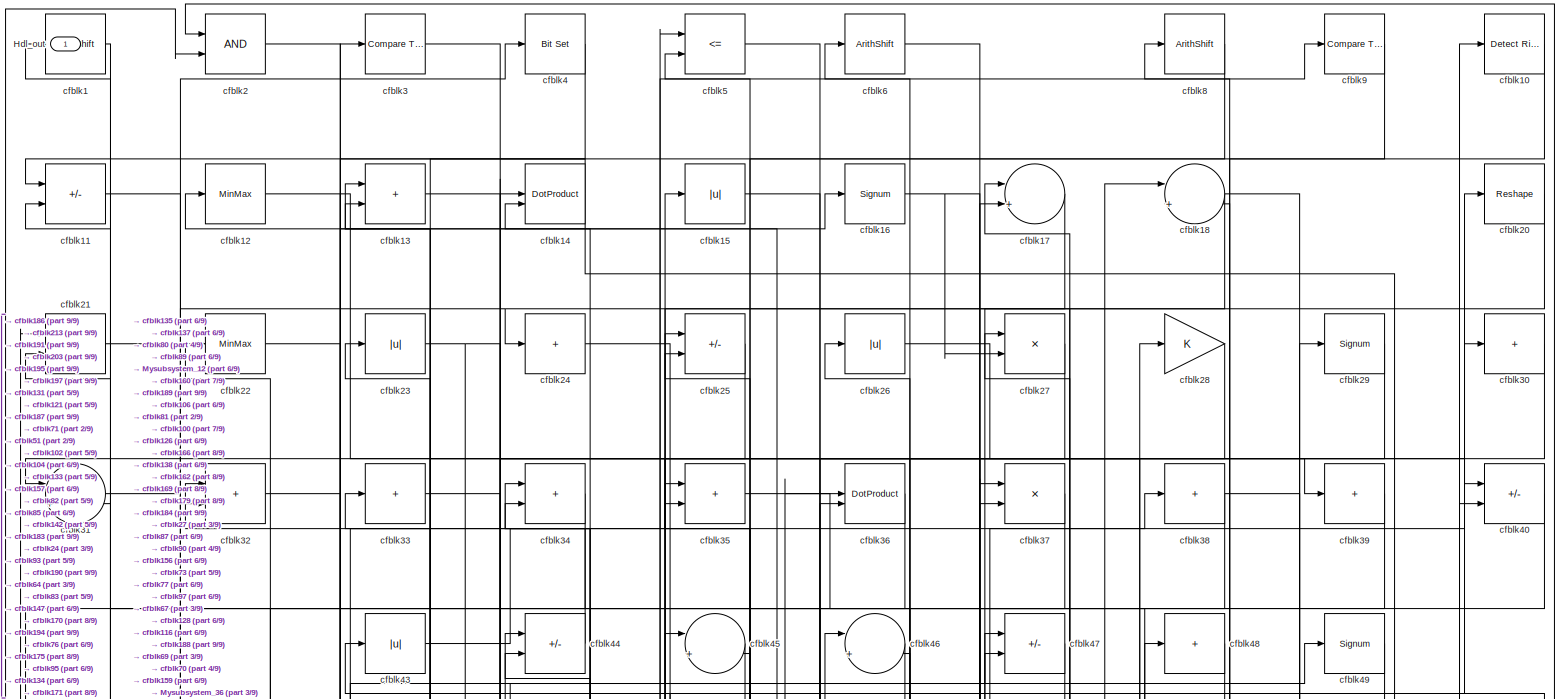
[diagram: root canvas - part 1/9, full width, top band]
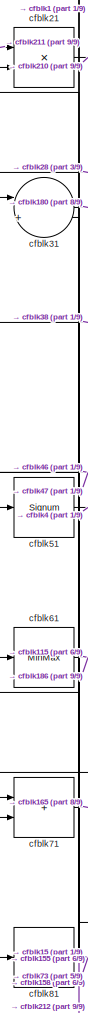
[diagram: root canvas - part 2/9, top left region]
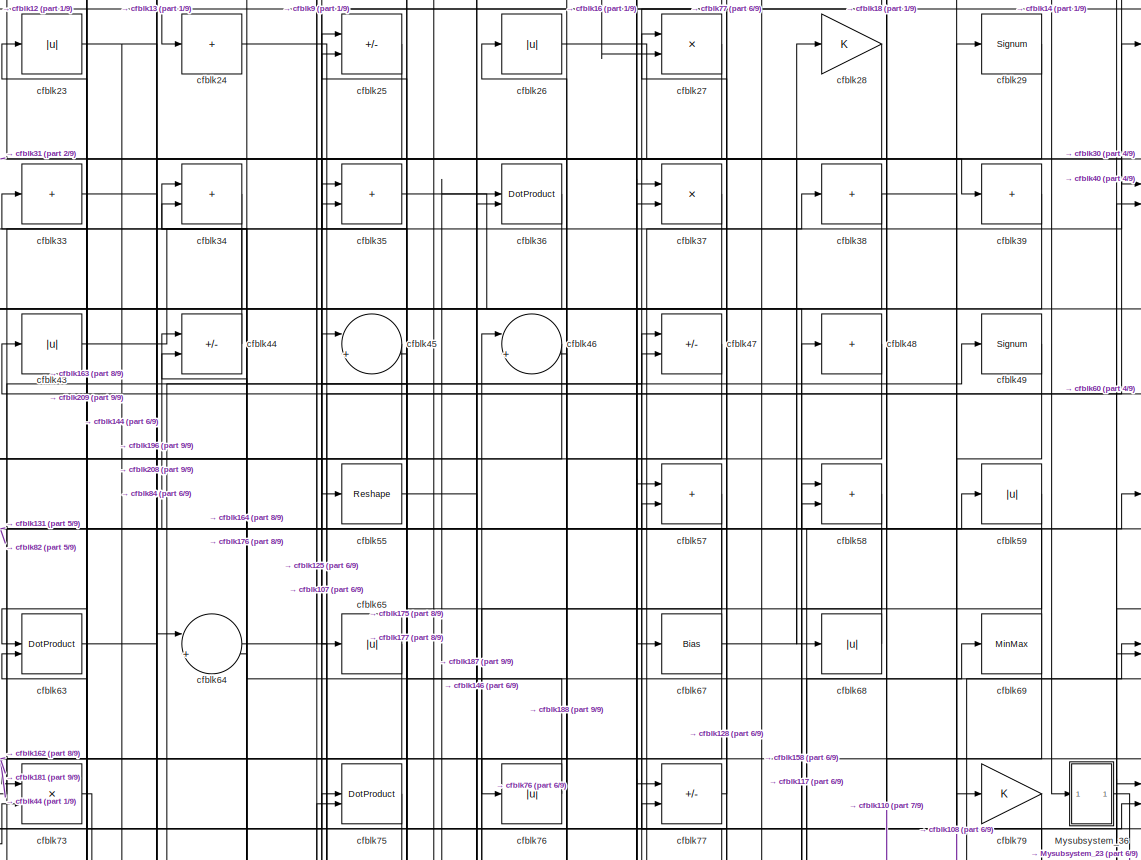
[diagram: root canvas - part 3/9, top center region]
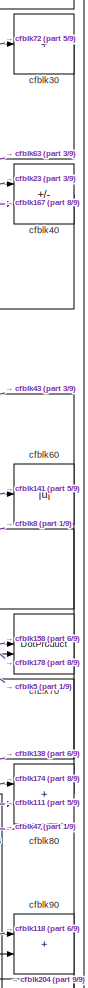
[diagram: root canvas - part 4/9, top right region]
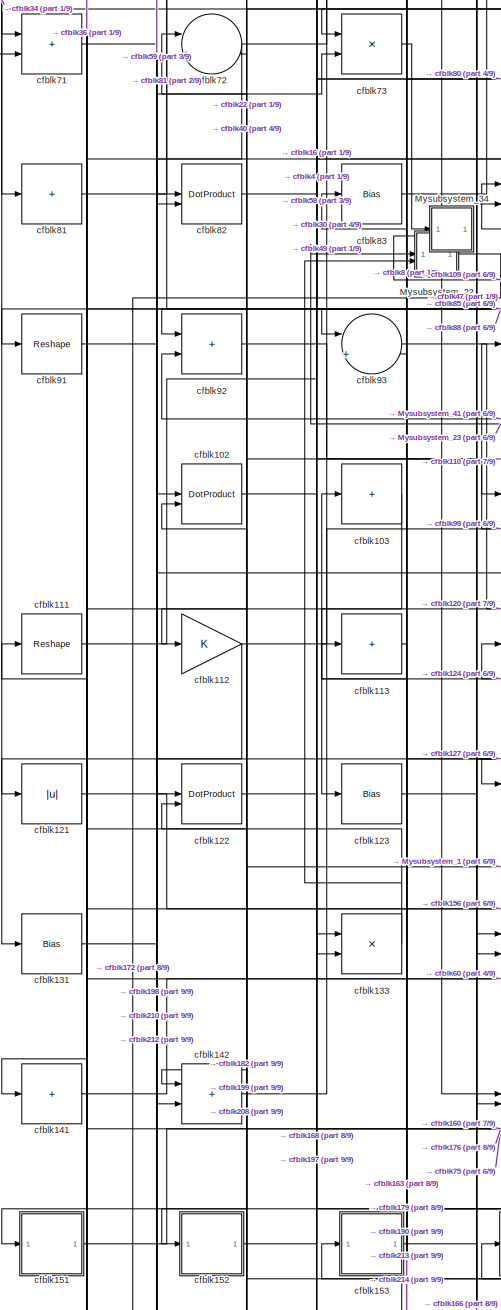
[diagram: root canvas - part 5/9, middle left region]
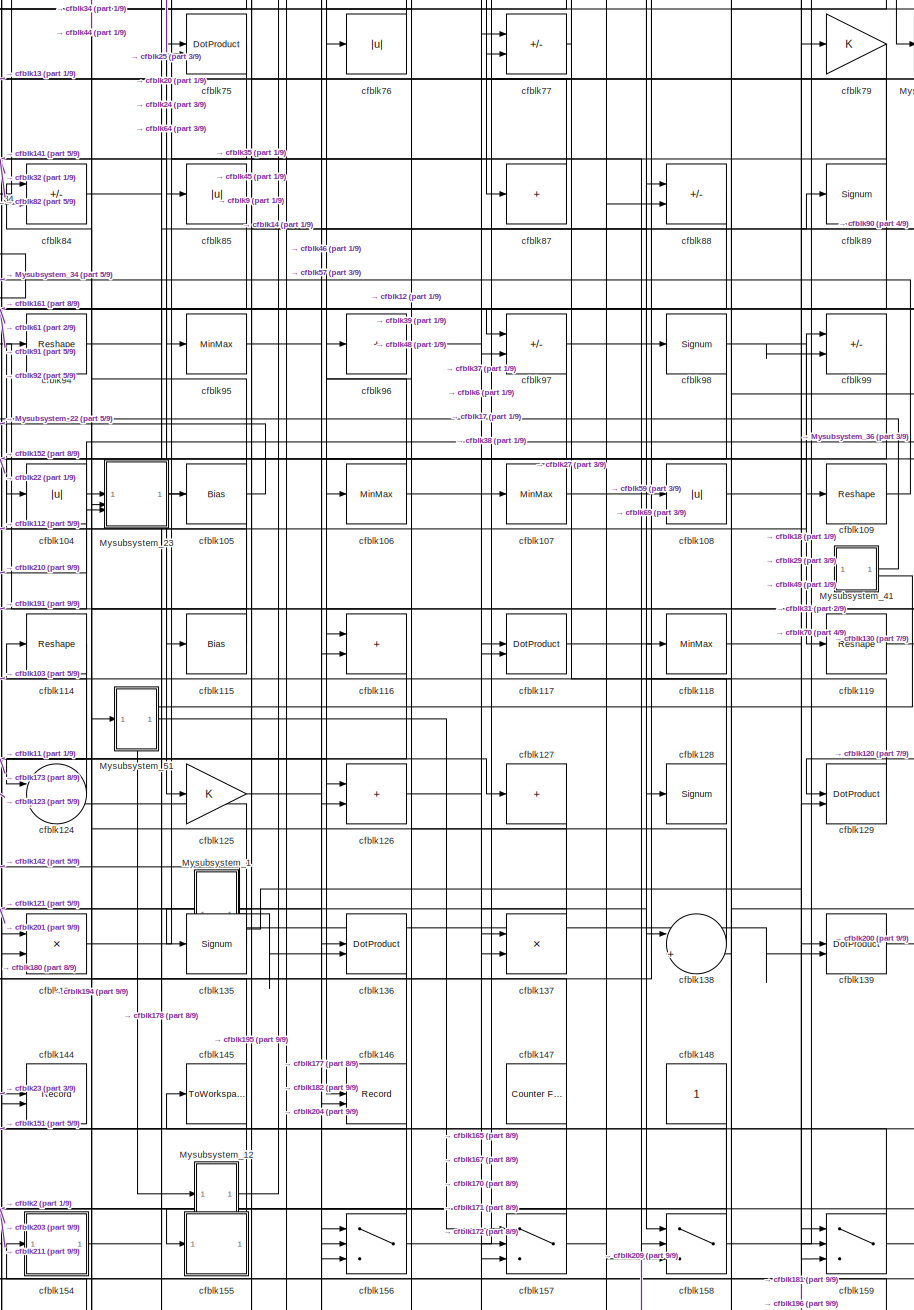
[diagram: root canvas - part 6/9, central region]
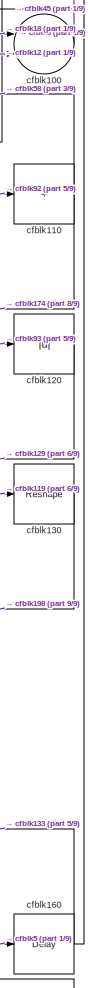
[diagram: root canvas - part 7/9, middle right region]
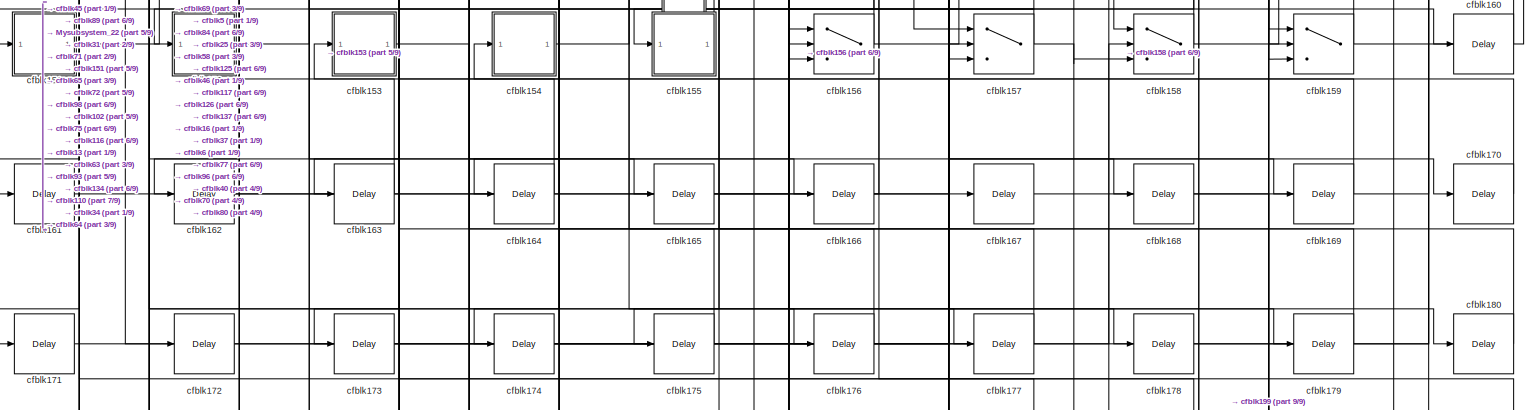
[diagram: root canvas - part 8/9, full width, bottom band]
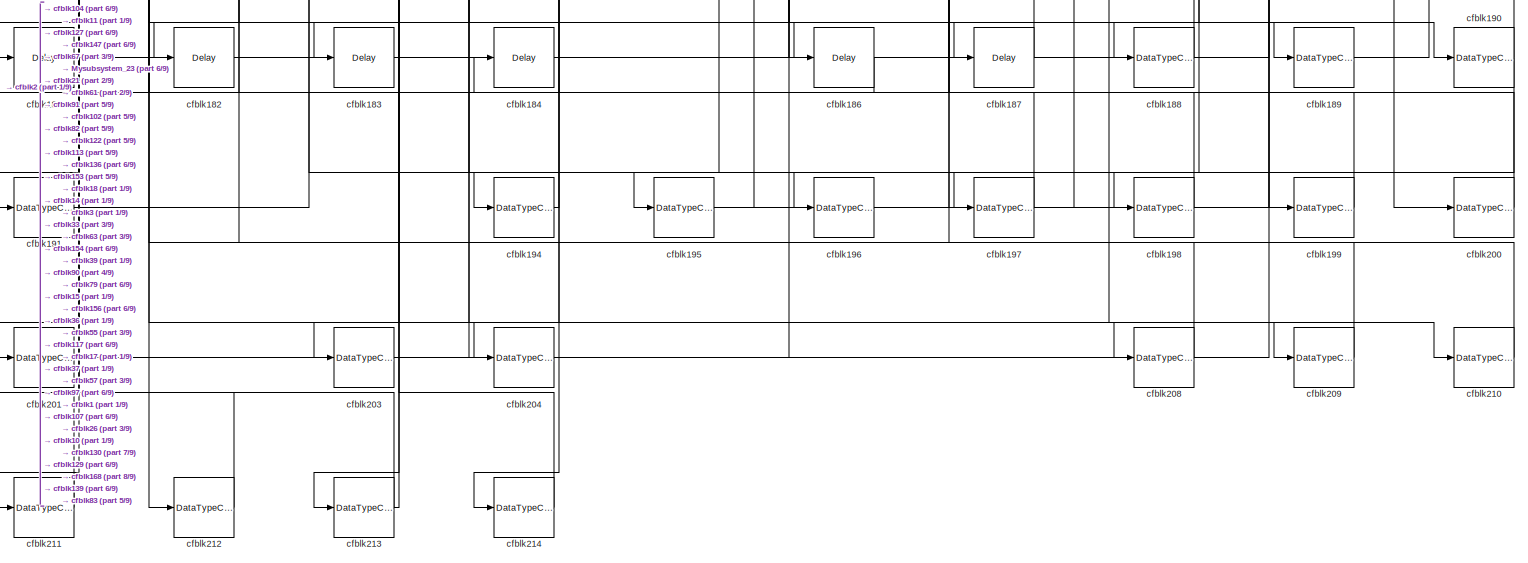
[diagram: root canvas - part 9/9, full width, bottom band]
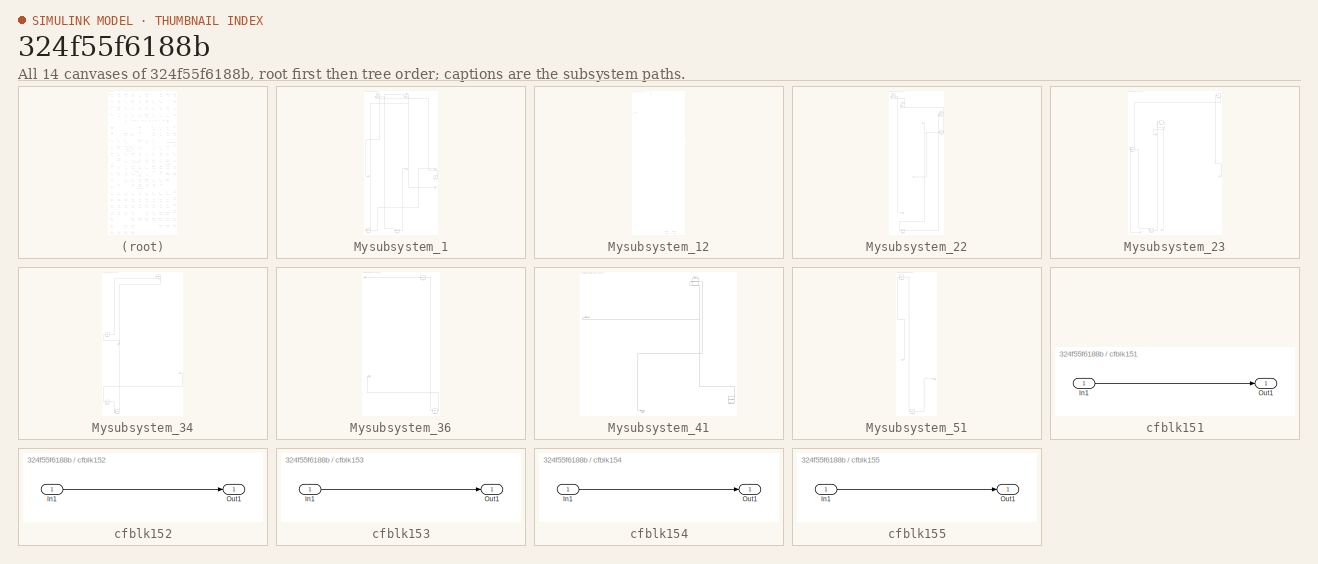
[diagram: thumbnail index - all 14 canvases of the model, root first then tree order]
MODEL slx_324f55f6188b
KIND model
CONFIG AbsTol = auto
CONFIG EnableMultiTasking = off
CONFIG FixedStep = auto
CONFIG MaxStep = auto
CONFIG MinStep = auto
CONFIG RelTol = 1e-3
CONFIG SampleTimeConstraint = Unconstrained
CONFIG SolverName = VariableStepAuto
CONFIG StartTime = 0.0
CONFIG StopTime = 10.0
BLOCK [Outport] Hdl_out
  OutDataTypeStr = uint8
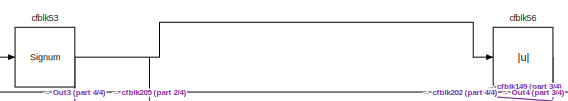
[diagram: Mysubsystem_1 - part 1/4, top center region]
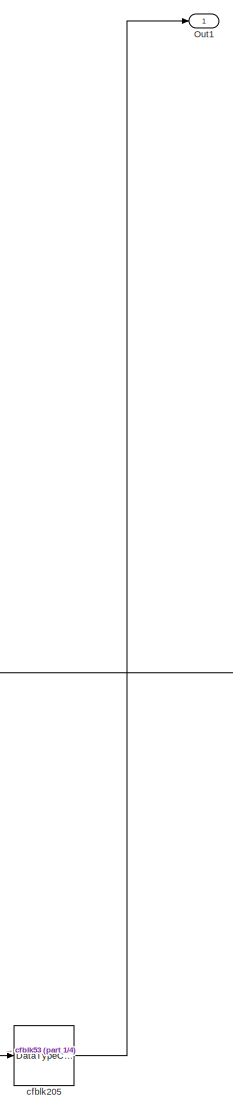
[diagram: Mysubsystem_1 - part 2/4, bottom center region]
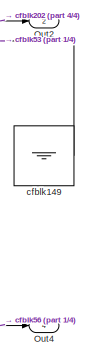
[diagram: Mysubsystem_1 - part 3/4, middle right region]
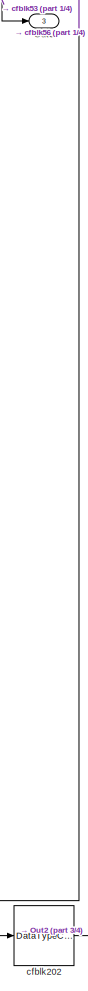
[diagram: Mysubsystem_1 - part 4/4, bottom left region]
BLOCK [SubSystem] Mysubsystem_1
  RTWFcnName = Mysubsystem_1
  RTWFcnNameOpts = User specified
  RTWFileNameOpts = Use function name
  RTWSystemCode = Reusable function
  TreatAsAtomicUnit = on
BLOCK [Outport] Mysubsystem_1/Out1
BLOCK [Outport] Mysubsystem_1/Out2
  Port = 2
BLOCK [Outport] Mysubsystem_1/Out3
  Port = 3
BLOCK [Outport] Mysubsystem_1/Out4
  Port = 4
BLOCK [Ground] Mysubsystem_1/cfblk149
BLOCK [DataTypeConversion] Mysubsystem_1/cfblk202
  OutDataTypeStr = uint8
  RndMeth = Floor
  SaturateOnIntegerOverflow = off
BLOCK [DataTypeConversion] Mysubsystem_1/cfblk205
  OutDataTypeStr = uint8
  RndMeth = Floor
  SaturateOnIntegerOverflow = off
BLOCK [Signum] Mysubsystem_1/cfblk53
BLOCK [Abs] Mysubsystem_1/cfblk56
  SaturateOnIntegerOverflow = off
BLOCK [SubSystem] Mysubsystem_12
  RTWFcnName = Mysubsystem_12
  RTWFcnNameOpts = User specified
  RTWFileNameOpts = Use function name
  RTWSystemCode = Reusable function
  TreatAsAtomicUnit = on
BLOCK [Inport] Mysubsystem_12/In1
BLOCK [Outport] Mysubsystem_12/Out1
BLOCK [DataTypeConversion] Mysubsystem_12/cfblk206
  OutDataTypeStr = uint8
  RndMeth = Floor
  SaturateOnIntegerOverflow = off
BLOCK [DataTypeConversion] Mysubsystem_12/cfblk207
  OutDataTypeStr = uint8
  RndMeth = Floor
  SaturateOnIntegerOverflow = off
BLOCK [Sum] Mysubsystem_12/cfblk42
  IconShape = rectangular
  Inputs = +
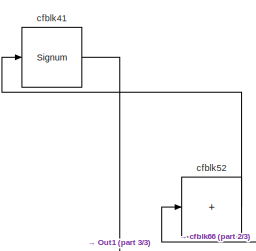
[diagram: Mysubsystem_22 - part 1/3, top left region]
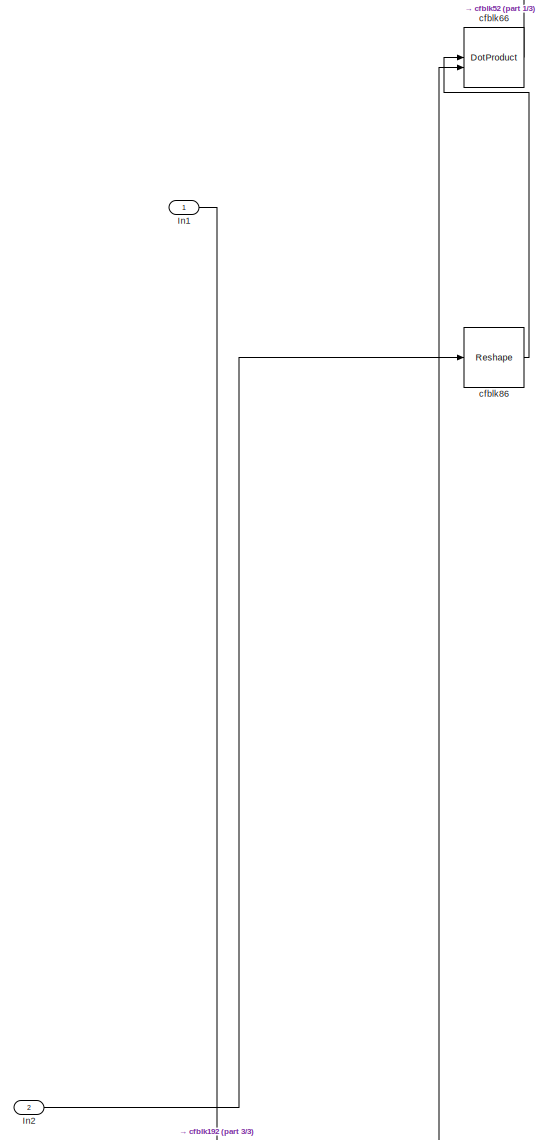
[diagram: Mysubsystem_22 - part 2/3, middle right region]
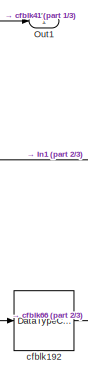
[diagram: Mysubsystem_22 - part 3/3, bottom left region]
BLOCK [SubSystem] Mysubsystem_22
  RTWFcnName = Mysubsystem_22
  RTWFcnNameOpts = User specified
  RTWFileNameOpts = Use function name
  RTWSystemCode = Reusable function
  TreatAsAtomicUnit = on
BLOCK [Inport] Mysubsystem_22/In1
BLOCK [Inport] Mysubsystem_22/In2
  Port = 2
BLOCK [Outport] Mysubsystem_22/Out1
BLOCK [DataTypeConversion] Mysubsystem_22/cfblk192
  OutDataTypeStr = uint8
  RndMeth = Floor
  SaturateOnIntegerOverflow = off
BLOCK [Signum] Mysubsystem_22/cfblk41
BLOCK [Sum] Mysubsystem_22/cfblk52
  IconShape = rectangular
  Inputs = +
BLOCK [DotProduct] Mysubsystem_22/cfblk66
  OutDataTypeStr = Inherit: Inherit via internal rule
BLOCK [Reshape] Mysubsystem_22/cfblk86
BLOCK [SubSystem] Mysubsystem_23
  RTWFcnName = Mysubsystem_23
  RTWFcnNameOpts = User specified
  RTWFileNameOpts = Use function name
  RTWSystemCode = Reusable function
  TreatAsAtomicUnit = on
BLOCK [Inport] Mysubsystem_23/In1
BLOCK [Inport] Mysubsystem_23/In2
  Port = 2
BLOCK [Inport] Mysubsystem_23/In3
  Port = 3
BLOCK [Outport] Mysubsystem_23/Out1
BLOCK [DotProduct] Mysubsystem_23/cfblk101
  OutDataTypeStr = Inherit: Inherit via internal rule
BLOCK [DataTypeConversion] Mysubsystem_23/cfblk193
  OutDataTypeStr = uint8
  RndMeth = Floor
  SaturateOnIntegerOverflow = off
BLOCK [Abs] Mysubsystem_23/cfblk50
  SaturateOnIntegerOverflow = off
BLOCK [Product] Mysubsystem_23/cfblk74
  Inputs = */
  RndMeth = Zero
  SaturateOnIntegerOverflow = on
BLOCK [SubSystem] Mysubsystem_34
  RTWFcnName = Mysubsystem_34
  RTWFcnNameOpts = User specified
  RTWFileNameOpts = Use function name
  RTWSystemCode = Reusable function
  TreatAsAtomicUnit = on
BLOCK [Inport] Mysubsystem_34/In1
BLOCK [Inport] Mysubsystem_34/In2
  Port = 2
BLOCK [Signum] Mysubsystem_34/cfblk132
BLOCK [Record] Mysubsystem_34/cfblk143
  CompatibilityTag = XY
  FileSettingsInternal = {"entries":[{"content":{"excelSettings":{"content":{},"type":"Streamout.ExcelSettings"}},"type":"Streamout.FileSettingStorage","uuid":""}],"packageUris":["http:\/\/schema.mathworks.com\/mf0\/streamout_blocks\/R2020a"],"version":"1.0"}  <repeated x3 — deduplicated; at blocks: cfblk143, cfblk144, cfblk146>
  Layout = [1 1]
  SignalsInternal = {"entries":[{"content":{},"type":"RecordBlkView.InputSignals","uuid":""}],"packageUris":["http:\/\/schema.mathworks.com\/mf0\/streamout_blocks\/R2020a"],"version":"1.0"}
  VisualizationBindings = {"xyplotplugin":{"info":[{"series":[],"subplotID":1}]}}
  st = -1
BLOCK [Bias] Mysubsystem_34/cfblk62
  Bias = 0.0
  SaturateOnIntegerOverflow = off
BLOCK [Reference] Mysubsystem_34/cfblk7  REF=hdlsllib/Logic and Bit
Operations/Bit Slice
  SourceBlock = hdlsllib/Logic and Bit\nOperations/Bit Slice
  SourceType = Bit Slice
BLOCK [SubSystem] Mysubsystem_36
  RTWFcnName = Mysubsystem_36
  RTWFcnNameOpts = User specified
  RTWFileNameOpts = Use function name
  RTWSystemCode = Reusable function
  TreatAsAtomicUnit = on
BLOCK [Inport] Mysubsystem_36/In1
BLOCK [Outport] Mysubsystem_36/Out1
BLOCK [Bias] Mysubsystem_36/cfblk140
  Bias = 0.0
  SaturateOnIntegerOverflow = off
BLOCK [Reshape] Mysubsystem_36/cfblk19
BLOCK [SubSystem] Mysubsystem_41
  RTWFcnName = Mysubsystem_41
  RTWFcnNameOpts = User specified
  RTWFileNameOpts = Use function name
  RTWSystemCode = Reusable function
  TreatAsAtomicUnit = on
BLOCK [Outport] Mysubsystem_41/Out2
  Port = 2
BLOCK [Reference] Mysubsystem_41/cfblk150  REF=hdlsllib/Sources/Counter
Free-Running
  SourceBlock = hdlsllib/Sources/Counter\nFree-Running
  SourceType = Counter Free-Running
BLOCK [Signum] Mysubsystem_41/cfblk78
BLOCK [Outport] Mysubsystem_41/y
BLOCK [SubSystem] Mysubsystem_51
  RTWFcnName = Mysubsystem_51
  RTWFcnNameOpts = User specified
  RTWFileNameOpts = Use function name
  RTWSystemCode = Reusable function
  TreatAsAtomicUnit = on
BLOCK [Inport] Mysubsystem_51/In1
BLOCK [Outport] Mysubsystem_51/Out1
BLOCK [Delay] Mysubsystem_51/cfblk185
  InputPortMap = u0
  SampleTime = 1
BLOCK [MinMax] Mysubsystem_51/cfblk54
BLOCK [ArithShift] cfblk1
  BitShiftNumber = 8
  InputPortMap = u0
BLOCK [Reference] cfblk10  REF=hdlsllib/Logic and Bit
Operations/Detect Rise
Positive
  SourceBlock = hdlsllib/Logic and Bit\nOperations/Detect Rise\nPositive
  SourceType = Detect Rise Positive
BLOCK [Sum] cfblk100
  Inputs = |++
  OutDataTypeStr = uint8
BLOCK [DotProduct] cfblk102
  OutDataTypeStr = uint8
BLOCK [Sum] cfblk103
  IconShape = rectangular
  Inputs = +
  OutDataTypeStr = uint8
BLOCK [Abs] cfblk104
  OutDataTypeStr = uint8
  SaturateOnIntegerOverflow = off
BLOCK [Bias] cfblk105
  Bias = 0.0
  SaturateOnIntegerOverflow = off
BLOCK [MinMax] cfblk106
  OutDataTypeStr = uint8
BLOCK [MinMax] cfblk107
  OutDataTypeStr = uint8
BLOCK [Abs] cfblk108
  OutDataTypeStr = uint8
  SaturateOnIntegerOverflow = off
BLOCK [Reshape] cfblk109
BLOCK [Sum] cfblk11
  IconShape = rectangular
  Inputs = +-
  OutDataTypeStr = uint8
BLOCK [Sum] cfblk110
  IconShape = rectangular
  Inputs = +
  OutDataTypeStr = uint8
BLOCK [Reshape] cfblk111
BLOCK [Gain] cfblk112
  OutDataTypeStr = uint8
BLOCK [Sum] cfblk113
  IconShape = rectangular
  Inputs = +
  OutDataTypeStr = uint8
BLOCK [Reshape] cfblk114
BLOCK [Bias] cfblk115
  Bias = 0.0
  SaturateOnIntegerOverflow = off
BLOCK [Sum] cfblk116
  IconShape = rectangular
  OutDataTypeStr = uint8
BLOCK [DotProduct] cfblk117
  OutDataTypeStr = uint8
BLOCK [MinMax] cfblk118
  OutDataTypeStr = uint8
BLOCK [Reshape] cfblk119
BLOCK [MinMax] cfblk12
  OutDataTypeStr = uint8
BLOCK [Abs] cfblk120
  OutDataTypeStr = uint8
  SaturateOnIntegerOverflow = off
BLOCK [Abs] cfblk121
  OutDataTypeStr = uint8
  SaturateOnIntegerOverflow = off
BLOCK [DotProduct] cfblk122
  OutDataTypeStr = uint8
BLOCK [Bias] cfblk123
  Bias = 0.0
  SaturateOnIntegerOverflow = off
BLOCK [Sum] cfblk124
  Inputs = |++
  OutDataTypeStr = uint8
BLOCK [Gain] cfblk125
  OutDataTypeStr = uint8
BLOCK [Sum] cfblk126
  IconShape = rectangular
  OutDataTypeStr = uint8
BLOCK [Sum] cfblk127
  IconShape = rectangular
  Inputs = +
  OutDataTypeStr = uint8
BLOCK [Signum] cfblk128
BLOCK [DotProduct] cfblk129
  OutDataTypeStr = uint8
BLOCK [Sum] cfblk13
  IconShape = rectangular
  OutDataTypeStr = uint8
BLOCK [Reshape] cfblk130
BLOCK [Bias] cfblk131
  Bias = 0.0
  SaturateOnIntegerOverflow = off
BLOCK [Product] cfblk133
  Inputs = */
  OutDataTypeStr = uint8
  RndMeth = Zero
  SaturateOnIntegerOverflow = on
BLOCK [Product] cfblk134
  Inputs = */
  OutDataTypeStr = uint8
  RndMeth = Zero
  SaturateOnIntegerOverflow = on
BLOCK [Signum] cfblk135
BLOCK [DotProduct] cfblk136
  OutDataTypeStr = uint8
BLOCK [Product] cfblk137
  Inputs = */
  OutDataTypeStr = uint8
  RndMeth = Zero
  SaturateOnIntegerOverflow = on
BLOCK [Sum] cfblk138
  Inputs = |++
  OutDataTypeStr = uint8
BLOCK [DotProduct] cfblk139
  OutDataTypeStr = uint8
BLOCK [DotProduct] cfblk14
  OutDataTypeStr = uint8
BLOCK [Sum] cfblk141
  IconShape = rectangular
  Inputs = +
  OutDataTypeStr = uint8
BLOCK [Sum] cfblk142
  IconShape = rectangular
  OutDataTypeStr = uint8
BLOCK [Record] cfblk144
  CompatibilityTag = XY
  Layout = [1 1]
  SignalsInternal = {"entries":[{"content":{"signals":[{"content":{"blockPath":[],"dimensions":[1],"domain":"","lineColor":"#a2142f","plots":[1],"port":1,"signalID":16696,"signalName":"cfblk23"},"type":"RecordBlkView.Signal","uuid":""},{"content":{"blockPath":[],"dimensions":[1],"domain":"","lineColor":"#139fff","plots":[1],"port":2,"signalID":16699,"signalName":"cfblk97"},"type":"RecordBlkView.Signal","uuid":""}]},"...<+142ch>
  VisualizationBindings = {"xyplotplugin":{"info":[{"series":[{"bindingParametersList":[{"parameter":"X-Axis","signalID":16696,"signalName":"cfblk23"},{"parameter":"Y-Axis","signalID":16699,"signalName":"cfblk97"}],"seriesID":6845}],"subplotID":1}]}}
  st = -1
BLOCK [ToWorkspace] cfblk145
  MaxDataPoints = inf
  SampleTime = -1
  SaveFormat = Timeseries
  VariableName = simout
BLOCK [Record] cfblk146
  CompatibilityTag = XY
  Layout = [1 1]
  SignalsInternal = {"entries":[{"content":{"signals":[{"content":{"blockPath":[],"dimensions":[1],"domain":"","lineColor":"#a2142f","plots":[1],"port":1,"signalID":16688,"signalName":"cfblk57"},"type":"RecordBlkView.Signal","uuid":""},{"content":{"blockPath":[],"dimensions":[1],"domain":"","lineColor":"#139fff","plots":[1],"port":2,"signalID":16691,"signalName":"cfblk29"},"type":"RecordBlkView.Signal","uuid":""}]},"...<+142ch>
  VisualizationBindings = {"xyplotplugin":{"info":[{"series":[{"bindingParametersList":[{"parameter":"X-Axis","signalID":16688,"signalName":"cfblk57"},{"parameter":"Y-Axis","signalID":16691,"signalName":"cfblk29"}],"seriesID":54551}],"subplotID":1}]}}
  st = -1
BLOCK [Reference] cfblk147  REF=hdlsllib/Sources/Counter
Free-Running
  SourceBlock = hdlsllib/Sources/Counter\nFree-Running
  SourceType = Counter Free-Running
BLOCK [Constant] cfblk148
  OutDataTypeStr = uint8
  SampleTime = -1
BLOCK [Abs] cfblk15
  OutDataTypeStr = uint8
  SaturateOnIntegerOverflow = off
BLOCK [SubSystem] cfblk151
  LibrarySourceBlock = hdlsllib/Ports &\nSubsystems/Subsystem
BLOCK [Inport] cfblk151/In1
BLOCK [Outport] cfblk151/Out1
BLOCK [SubSystem] cfblk152
  LibrarySourceBlock = hdlsllib/Ports &\nSubsystems/Subsystem
BLOCK [Inport] cfblk152/In1
BLOCK [Outport] cfblk152/Out1
BLOCK [SubSystem] cfblk153
  LibrarySourceBlock = hdlsllib/Ports &\nSubsystems/Subsystem
BLOCK [Inport] cfblk153/In1
BLOCK [Outport] cfblk153/Out1
BLOCK [SubSystem] cfblk154
  LibrarySourceBlock = hdlsllib/Ports &\nSubsystems/Subsystem
BLOCK [Inport] cfblk154/In1
BLOCK [Outport] cfblk154/Out1
BLOCK [SubSystem] cfblk155
  LibrarySourceBlock = hdlsllib/Ports &\nSubsystems/Subsystem
BLOCK [Inport] cfblk155/In1
BLOCK [Outport] cfblk155/Out1
BLOCK [Switch] cfblk156
  InputSameDT = off
  OutDataTypeStr = uint8
  SaturateOnIntegerOverflow = off
BLOCK [Switch] cfblk157
  InputSameDT = off
  OutDataTypeStr = uint8
  SaturateOnIntegerOverflow = off
BLOCK [Switch] cfblk158
  InputSameDT = off
  OutDataTypeStr = uint8
  SaturateOnIntegerOverflow = off
BLOCK [Switch] cfblk159
  InputSameDT = off
  OutDataTypeStr = uint8
  SaturateOnIntegerOverflow = off
BLOCK [Signum] cfblk16
BLOCK [Delay] cfblk160
  InputPortMap = u0
  SampleTime = 1
BLOCK [Delay] cfblk161
  InputPortMap = u0
  SampleTime = 1
BLOCK [Delay] cfblk162
  InputPortMap = u0
  SampleTime = 1
BLOCK [Delay] cfblk163
  InputPortMap = u0
  SampleTime = 1
BLOCK [Delay] cfblk164
  InputPortMap = u0
  SampleTime = 1
BLOCK [Delay] cfblk165
  InputPortMap = u0
  SampleTime = 1
BLOCK [Delay] cfblk166
  InputPortMap = u0
  SampleTime = 1
BLOCK [Delay] cfblk167
  InputPortMap = u0
  SampleTime = 1
BLOCK [Delay] cfblk168
  InputPortMap = u0
  SampleTime = 1
BLOCK [Delay] cfblk169
  InputPortMap = u0
  SampleTime = 1
BLOCK [Sum] cfblk17
  Inputs = |++
  OutDataTypeStr = uint8
BLOCK [Delay] cfblk170
  InputPortMap = u0
  SampleTime = 1
BLOCK [Delay] cfblk171
  InputPortMap = u0
  SampleTime = 1
BLOCK [Delay] cfblk172
  InputPortMap = u0
  SampleTime = 1
BLOCK [Delay] cfblk173
  InputPortMap = u0
  SampleTime = 1
BLOCK [Delay] cfblk174
  InputPortMap = u0
  SampleTime = 1
BLOCK [Delay] cfblk175
  InputPortMap = u0
  SampleTime = 1
BLOCK [Delay] cfblk176
  InputPortMap = u0
  SampleTime = 1
BLOCK [Delay] cfblk177
  InputPortMap = u0
  SampleTime = 1
BLOCK [Delay] cfblk178
  InputPortMap = u0
  SampleTime = 1
BLOCK [Delay] cfblk179
  InputPortMap = u0
  SampleTime = 1
BLOCK [Sum] cfblk18
  Inputs = |++
  OutDataTypeStr = uint8
BLOCK [Delay] cfblk180
  InputPortMap = u0
  SampleTime = 1
BLOCK [Delay] cfblk181
  InputPortMap = u0
  SampleTime = 1
BLOCK [Delay] cfblk182
  InputPortMap = u0
  SampleTime = 1
BLOCK [Delay] cfblk183
  InputPortMap = u0
  SampleTime = 1
BLOCK [Delay] cfblk184
  InputPortMap = u0
  SampleTime = 1
BLOCK [Delay] cfblk186
  InputPortMap = u0
  SampleTime = 1
BLOCK [Delay] cfblk187
  InputPortMap = u0
  SampleTime = 1
BLOCK [DataTypeConversion] cfblk188
  OutDataTypeStr = uint8
  RndMeth = Floor
  SaturateOnIntegerOverflow = off
BLOCK [DataTypeConversion] cfblk189
  OutDataTypeStr = uint8
  RndMeth = Floor
  SaturateOnIntegerOverflow = off
BLOCK [DataTypeConversion] cfblk190
  OutDataTypeStr = uint8
  RndMeth = Floor
  SaturateOnIntegerOverflow = off
BLOCK [DataTypeConversion] cfblk191
  OutDataTypeStr = uint8
  RndMeth = Floor
  SaturateOnIntegerOverflow = off
BLOCK [DataTypeConversion] cfblk194
  OutDataTypeStr = uint8
  RndMeth = Floor
  SaturateOnIntegerOverflow = off
BLOCK [DataTypeConversion] cfblk195
  OutDataTypeStr = uint8
  RndMeth = Floor
  SaturateOnIntegerOverflow = off
BLOCK [DataTypeConversion] cfblk196
  OutDataTypeStr = uint8
  RndMeth = Floor
  SaturateOnIntegerOverflow = off
BLOCK [DataTypeConversion] cfblk197
  OutDataTypeStr = uint8
  RndMeth = Floor
  SaturateOnIntegerOverflow = off
BLOCK [DataTypeConversion] cfblk198
  OutDataTypeStr = uint8
  RndMeth = Floor
  SaturateOnIntegerOverflow = off
BLOCK [DataTypeConversion] cfblk199
  OutDataTypeStr = uint8
  RndMeth = Floor
  SaturateOnIntegerOverflow = off
BLOCK [Logic] cfblk2
  AllPortsSameDT = off
  OutDataTypeStr = boolean
BLOCK [Reshape] cfblk20
BLOCK [DataTypeConversion] cfblk200
  OutDataTypeStr = uint8
  RndMeth = Floor
  SaturateOnIntegerOverflow = off
BLOCK [DataTypeConversion] cfblk201
  OutDataTypeStr = uint8
  RndMeth = Floor
  SaturateOnIntegerOverflow = off
BLOCK [DataTypeConversion] cfblk203
  OutDataTypeStr = uint8
  RndMeth = Floor
  SaturateOnIntegerOverflow = off
BLOCK [DataTypeConversion] cfblk204
  OutDataTypeStr = uint8
  RndMeth = Floor
  SaturateOnIntegerOverflow = off
BLOCK [DataTypeConversion] cfblk208
  OutDataTypeStr = uint8
  RndMeth = Floor
  SaturateOnIntegerOverflow = off
BLOCK [DataTypeConversion] cfblk209
  OutDataTypeStr = uint8
  RndMeth = Floor
  SaturateOnIntegerOverflow = off
BLOCK [Product] cfblk21
  Inputs = */
  OutDataTypeStr = uint8
  RndMeth = Zero
  SaturateOnIntegerOverflow = on
BLOCK [DataTypeConversion] cfblk210
  OutDataTypeStr = uint8
  RndMeth = Floor
  SaturateOnIntegerOverflow = off
BLOCK [DataTypeConversion] cfblk211
  OutDataTypeStr = uint8
  RndMeth = Floor
  SaturateOnIntegerOverflow = off
BLOCK [DataTypeConversion] cfblk212
  OutDataTypeStr = uint8
  RndMeth = Floor
  SaturateOnIntegerOverflow = off
BLOCK [DataTypeConversion] cfblk213
  OutDataTypeStr = uint8
  RndMeth = Floor
  SaturateOnIntegerOverflow = off
BLOCK [DataTypeConversion] cfblk214
  OutDataTypeStr = uint8
  RndMeth = Floor
  SaturateOnIntegerOverflow = off
BLOCK [MinMax] cfblk22
  OutDataTypeStr = uint8
BLOCK [Abs] cfblk23
  OutDataTypeStr = uint8
  SaturateOnIntegerOverflow = off
BLOCK [Sum] cfblk24
  IconShape = rectangular
  Inputs = +
  OutDataTypeStr = uint8
BLOCK [Sum] cfblk25
  IconShape = rectangular
  Inputs = +-
  OutDataTypeStr = uint8
BLOCK [Abs] cfblk26
  OutDataTypeStr = uint8
  SaturateOnIntegerOverflow = off
BLOCK [Product] cfblk27
  Inputs = */
  OutDataTypeStr = uint8
  RndMeth = Zero
  SaturateOnIntegerOverflow = on
BLOCK [Gain] cfblk28
  OutDataTypeStr = uint8
BLOCK [Signum] cfblk29
BLOCK [Reference] cfblk3  REF=hdlsllib/Logic and Bit
Operations/Compare
To Zero
  SourceBlock = hdlsllib/Logic and Bit\nOperations/Compare\nTo Zero
  SourceType = Compare To Zero
BLOCK [Sum] cfblk30
  IconShape = rectangular
  Inputs = +
  OutDataTypeStr = uint8
BLOCK [Sum] cfblk31
  Inputs = |++
  OutDataTypeStr = uint8
BLOCK [Sum] cfblk32
  IconShape = rectangular
  OutDataTypeStr = uint8
BLOCK [Sum] cfblk33
  IconShape = rectangular
  Inputs = +
  OutDataTypeStr = uint8
BLOCK [Sum] cfblk34
  IconShape = rectangular
  OutDataTypeStr = uint8
BLOCK [Sum] cfblk35
  IconShape = rectangular
  OutDataTypeStr = uint8
BLOCK [DotProduct] cfblk36
  OutDataTypeStr = uint8
BLOCK [Product] cfblk37
  Inputs = */
  OutDataTypeStr = uint8
  RndMeth = Zero
  SaturateOnIntegerOverflow = on
BLOCK [Sum] cfblk38
  IconShape = rectangular
  Inputs = +
  OutDataTypeStr = uint8
BLOCK [Sum] cfblk39
  IconShape = rectangular
  Inputs = +
  OutDataTypeStr = uint8
BLOCK [Reference] cfblk4  REF=simulink/Logic and Bit
Operations/Bit Set
  LibrarySourceBlock = hdlsllib/Logic and Bit\nOperations/Bit Set
  SourceBlock = simulink/Logic and Bit\nOperations/Bit Set
  SourceType = Bit Set
BLOCK [Sum] cfblk40
  IconShape = rectangular
  Inputs = +-
  OutDataTypeStr = uint8
BLOCK [Abs] cfblk43
  OutDataTypeStr = uint8
  SaturateOnIntegerOverflow = off
BLOCK [Sum] cfblk44
  IconShape = rectangular
  Inputs = +-
  OutDataTypeStr = uint8
BLOCK [Sum] cfblk45
  Inputs = |++
  OutDataTypeStr = uint8
BLOCK [Sum] cfblk46
  Inputs = |++
  OutDataTypeStr = uint8
BLOCK [Sum] cfblk47
  IconShape = rectangular
  Inputs = +-
  OutDataTypeStr = uint8
BLOCK [Sum] cfblk48
  IconShape = rectangular
  Inputs = +
  OutDataTypeStr = uint8
BLOCK [Signum] cfblk49
BLOCK [RelationalOperator] cfblk5
  InputSameDT = off
  Operator = <=
  OutDataTypeStr = boolean
BLOCK [Signum] cfblk51
BLOCK [Reshape] cfblk55
BLOCK [Sum] cfblk57
  IconShape = rectangular
  OutDataTypeStr = uint8
BLOCK [Sum] cfblk58
  IconShape = rectangular
  OutDataTypeStr = uint8
BLOCK [Abs] cfblk59
  OutDataTypeStr = uint8
  SaturateOnIntegerOverflow = off
BLOCK [ArithShift] cfblk6
  BitShiftNumber = 8
  InputPortMap = u0
BLOCK [Abs] cfblk60
  OutDataTypeStr = uint8
  SaturateOnIntegerOverflow = off
BLOCK [MinMax] cfblk61
  OutDataTypeStr = uint8
BLOCK [DotProduct] cfblk63
  OutDataTypeStr = uint8
BLOCK [Sum] cfblk64
  Inputs = |++
  OutDataTypeStr = uint8
BLOCK [Abs] cfblk65
  OutDataTypeStr = uint8
  SaturateOnIntegerOverflow = off
BLOCK [Bias] cfblk67
  Bias = 0.0
  SaturateOnIntegerOverflow = off
BLOCK [Abs] cfblk68
  OutDataTypeStr = uint8
  SaturateOnIntegerOverflow = off
BLOCK [MinMax] cfblk69
  OutDataTypeStr = uint8
BLOCK [DotProduct] cfblk70
  OutDataTypeStr = uint8
BLOCK [Sum] cfblk71
  IconShape = rectangular
  OutDataTypeStr = uint8
BLOCK [Sum] cfblk72
  Inputs = |++
  OutDataTypeStr = uint8
BLOCK [Product] cfblk73
  Inputs = */
  OutDataTypeStr = uint8
  RndMeth = Zero
  SaturateOnIntegerOverflow = on
BLOCK [DotProduct] cfblk75
  OutDataTypeStr = uint8
BLOCK [Abs] cfblk76
  OutDataTypeStr = uint8
  SaturateOnIntegerOverflow = off
BLOCK [Sum] cfblk77
  IconShape = rectangular
  Inputs = +-
  OutDataTypeStr = uint8
BLOCK [Gain] cfblk79
  OutDataTypeStr = uint8
BLOCK [ArithShift] cfblk8
  BitShiftNumber = 8
  InputPortMap = u0
BLOCK [Sum] cfblk80
  IconShape = rectangular
  OutDataTypeStr = uint8
BLOCK [Sum] cfblk81
  IconShape = rectangular
  Inputs = +
  OutDataTypeStr = uint8
BLOCK [DotProduct] cfblk82
  OutDataTypeStr = uint8
BLOCK [Bias] cfblk83
  Bias = 0.0
  SaturateOnIntegerOverflow = off
BLOCK [Sum] cfblk84
  IconShape = rectangular
  Inputs = +-
  OutDataTypeStr = uint8
BLOCK [Abs] cfblk85
  OutDataTypeStr = uint8
  SaturateOnIntegerOverflow = off
BLOCK [Sum] cfblk87
  IconShape = rectangular
  Inputs = +
  OutDataTypeStr = uint8
BLOCK [Sum] cfblk88
  IconShape = rectangular
  Inputs = +-
  OutDataTypeStr = uint8
BLOCK [Signum] cfblk89
BLOCK [Reference] cfblk9  REF=hdlsllib/Logic and Bit
Operations/Compare
To Constant
  SourceBlock = hdlsllib/Logic and Bit\nOperations/Compare\nTo Constant
  SourceType = Compare To Constant
BLOCK [Sum] cfblk90
  IconShape = rectangular
  OutDataTypeStr = uint8
BLOCK [Reshape] cfblk91
BLOCK [Sum] cfblk92
  IconShape = rectangular
  OutDataTypeStr = uint8
BLOCK [Sum] cfblk93
  Inputs = |++
  OutDataTypeStr = uint8
BLOCK [Reshape] cfblk94
BLOCK [MinMax] cfblk95
  OutDataTypeStr = uint8
BLOCK [Sum] cfblk96
  IconShape = rectangular
  Inputs = +
  OutDataTypeStr = uint8
BLOCK [Sum] cfblk97
  IconShape = rectangular
  Inputs = +-
  OutDataTypeStr = uint8
BLOCK [Signum] cfblk98
BLOCK [Sum] cfblk99
  IconShape = rectangular
  Inputs = +-
  OutDataTypeStr = uint8
LINE Mysubsystem_1/cfblk149:1 -> Mysubsystem_1/cfblk53:1
LINE Mysubsystem_1/cfblk202:1 -> Mysubsystem_1/Out2:1
LINE Mysubsystem_1/cfblk205:1 -> Mysubsystem_1/Out1:1
NET Mysubsystem_1/cfblk53:1 -> Mysubsystem_1/Out3:1, Mysubsystem_1/cfblk205:1, Mysubsystem_1/cfblk56:1
NET Mysubsystem_1/cfblk56:1 -> Mysubsystem_1/Out4:1, Mysubsystem_1/cfblk202:1
LINE Mysubsystem_12/In1:1 -> Mysubsystem_12/cfblk207:1
LINE Mysubsystem_12/cfblk206:1 -> Mysubsystem_12/Out1:1
LINE Mysubsystem_12/cfblk207:1 -> Mysubsystem_12/cfblk42:1
LINE Mysubsystem_12/cfblk42:1 -> Mysubsystem_12/cfblk206:1
LINE Mysubsystem_12:1 -> cfblk14:2
LINE Mysubsystem_1:1 -> cfblk136:2
LINE Mysubsystem_1:2 -> cfblk139:2
LINE Mysubsystem_1:3 -> cfblk142:1
LINE Mysubsystem_1:4 -> cfblk159:3
LINE Mysubsystem_22/In1:1 -> Mysubsystem_22/cfblk192:1
LINE Mysubsystem_22/In2:1 -> Mysubsystem_22/cfblk86:1
LINE Mysubsystem_22/cfblk192:1 -> Mysubsystem_22/cfblk66:2
LINE Mysubsystem_22/cfblk41:1 -> Mysubsystem_22/Out1:1
LINE Mysubsystem_22/cfblk52:1 -> Mysubsystem_22/cfblk41:1
LINE Mysubsystem_22/cfblk66:1 -> Mysubsystem_22/cfblk52:1
LINE Mysubsystem_22/cfblk86:1 -> Mysubsystem_22/cfblk66:1
LINE Mysubsystem_22:1 -> cfblk172:1
LINE Mysubsystem_23/In1:1 -> Mysubsystem_23/cfblk50:1
LINE Mysubsystem_23/In2:1 -> Mysubsystem_23/cfblk74:2
LINE Mysubsystem_23/In3:1 -> Mysubsystem_23/cfblk101:2
LINE Mysubsystem_23/cfblk101:1 -> Mysubsystem_23/cfblk193:1
LINE Mysubsystem_23/cfblk193:1 -> Mysubsystem_23/cfblk74:1
LINE Mysubsystem_23/cfblk50:1 -> Mysubsystem_23/cfblk101:1
LINE Mysubsystem_23/cfblk74:1 -> Mysubsystem_23/Out1:1
LINE Mysubsystem_23:1 -> Mysubsystem_22:1
LINE Mysubsystem_34/In1:1 -> Mysubsystem_34/cfblk62:1
LINE Mysubsystem_34/In2:1 -> Mysubsystem_34/cfblk132:1
LINE Mysubsystem_34/cfblk132:1 -> Mysubsystem_34/cfblk143:2
LINE Mysubsystem_34/cfblk62:1 -> Mysubsystem_34/cfblk7:1
LINE Mysubsystem_34/cfblk7:1 -> Mysubsystem_34/cfblk143:1
LINE Mysubsystem_36/In1:1 -> Mysubsystem_36/cfblk19:1
LINE Mysubsystem_36/cfblk140:1 -> Mysubsystem_36/Out1:1
LINE Mysubsystem_36/cfblk19:1 -> Mysubsystem_36/cfblk140:1
LINE Mysubsystem_36:1 -> Mysubsystem_23:1
NET Mysubsystem_41/cfblk150:1 -> Mysubsystem_41/cfblk78:1, Mysubsystem_41/y:1
LINE Mysubsystem_41/cfblk78:1 -> Mysubsystem_41/Out2:1
LINE Mysubsystem_41:1 -> cfblk92:2
LINE Mysubsystem_41:2 -> Mysubsystem_12:1
LINE Mysubsystem_51/In1:1 -> Mysubsystem_51/cfblk54:1
LINE Mysubsystem_51/cfblk185:1 -> Mysubsystem_51/Out1:1
LINE Mysubsystem_51/cfblk54:1 -> Mysubsystem_51/cfblk185:1
LINE Mysubsystem_51:1 -> cfblk157:1
NET cfblk100:1 -> cfblk45:2, cfblk6:1
NET cfblk102:1 -> cfblk168:1, cfblk22:1
LINE cfblk103:1 -> cfblk123:1
LINE cfblk104:1 -> cfblk191:1
NET cfblk105:1 -> cfblk124:1, cfblk84:1
NET cfblk106:1 -> cfblk109:1, cfblk46:1
LINE cfblk107:1 -> cfblk209:1
LINE cfblk108:1 -> cfblk29:1
LINE cfblk109:1 -> Mysubsystem_34:2
LINE cfblk10:1 -> cfblk188:1
NET cfblk110:1 -> cfblk174:1, cfblk58:2
LINE cfblk111:1 -> cfblk80:2
NET cfblk112:1 -> cfblk151:1, cfblk99:1
LINE cfblk113:1 -> cfblk213:1
LINE cfblk114:1 -> cfblk134:2
LINE cfblk115:1 -> cfblk94:1
LINE cfblk116:1 -> cfblk173:1
LINE cfblk117:1 -> cfblk69:1
LINE cfblk118:1 -> cfblk90:1
LINE cfblk119:1 -> cfblk130:1
LINE cfblk11:1 -> cfblk126:1
LINE cfblk120:1 -> cfblk129:1
LINE cfblk121:1 -> cfblk156:2
LINE cfblk122:1 -> cfblk197:1
LINE cfblk123:1 -> cfblk127:1
LINE cfblk124:1 -> cfblk103:1
LINE cfblk125:1 -> cfblk177:1
LINE cfblk126:1 -> cfblk167:1
LINE cfblk127:1 -> cfblk201:1
NET cfblk128:1 -> cfblk27:1, cfblk77:2
LINE cfblk129:1 -> cfblk114:1
NET cfblk12:1 -> cfblk100:2, cfblk67:1
LINE cfblk130:1 -> cfblk198:1
LINE cfblk131:1 -> cfblk59:1
NET cfblk133:1 -> Mysubsystem_22:2, cfblk111:1
NET cfblk134:1 -> Mysubsystem_51:1, cfblk20:1
LINE cfblk135:1 -> cfblk124:2
LINE cfblk136:1 -> cfblk203:1
NET cfblk137:1 -> cfblk34:1, cfblk45:1
LINE cfblk138:1 -> cfblk96:1
LINE cfblk139:1 -> cfblk200:1
LINE cfblk13:1 -> cfblk64:1
LINE cfblk141:1 -> cfblk60:1
LINE cfblk142:1 -> cfblk49:1
NET cfblk147:1 -> cfblk211:1, cfblk44:2
LINE cfblk148:1 -> cfblk157:3
NET cfblk14:1 -> Mysubsystem_36:1, cfblk11:1
LINE cfblk151/In1:1 -> cfblk151/Out1:1
NET cfblk151:1 -> cfblk176:1, cfblk75:2
LINE cfblk152/In1:1 -> cfblk152/Out1:1
LINE cfblk152:1 -> cfblk75:1
LINE cfblk153/In1:1 -> cfblk153/Out1:1
LINE cfblk153:1 -> cfblk166:1
LINE cfblk154/In1:1 -> cfblk154/Out1:1
LINE cfblk154:1 -> cfblk88:1
LINE cfblk155/In1:1 -> cfblk155/Out1:1
LINE cfblk155:1 -> cfblk61:1
NET cfblk156:1 -> cfblk145:1, cfblk38:1
NET cfblk157:1 -> cfblk155:1, cfblk158:3
NET cfblk158:1 -> cfblk31:2, cfblk70:1
NET cfblk159:1 -> cfblk118:1, cfblk2:1
LINE cfblk15:1 -> cfblk189:1
LINE cfblk160:1 -> cfblk133:1
LINE cfblk161:1 -> cfblk156:1
LINE cfblk162:1 -> cfblk37:2
LINE cfblk163:1 -> cfblk72:1
LINE cfblk164:1 -> cfblk63:2
LINE cfblk165:1 -> cfblk77:1
LINE cfblk166:1 -> cfblk46:2
LINE cfblk167:1 -> cfblk40:2
LINE cfblk168:1 -> cfblk199:1
LINE cfblk169:1 -> cfblk13:2
NET cfblk16:1 -> cfblk179:1, cfblk27:2
LINE cfblk170:1 -> cfblk34:2
LINE cfblk171:1 -> cfblk137:1
LINE cfblk172:1 -> cfblk117:2
LINE cfblk173:1 -> cfblk158:2
LINE cfblk174:1 -> cfblk80:1
LINE cfblk175:1 -> cfblk5:1
LINE cfblk176:1 -> cfblk64:2
LINE cfblk177:1 -> cfblk25:2
LINE cfblk178:1 -> cfblk70:2
LINE cfblk179:1 -> cfblk93:2
LINE cfblk17:1 -> cfblk87:1
LINE cfblk180:1 -> cfblk134:1
LINE cfblk181:1 -> cfblk129:2
LINE cfblk182:1 -> cfblk156:3
LINE cfblk183:1 -> cfblk36:2
LINE cfblk184:1 -> cfblk17:2
LINE cfblk186:1 -> cfblk2:2
LINE cfblk187:1 -> cfblk1:1
LINE cfblk188:1 -> cfblk26:1
LINE cfblk189:1 -> cfblk10:1
NET cfblk18:1 -> cfblk100:1, cfblk183:1, cfblk24:1, cfblk32:2, cfblk97:1
NET cfblk190:1 -> cfblk214:1, cfblk83:1
LINE cfblk191:1 -> cfblk3:1
LINE cfblk194:1 -> Mysubsystem_23:2
NET cfblk195:1 -> cfblk36:1, cfblk97:2
LINE cfblk196:1 -> cfblk79:1
NET cfblk197:1 -> cfblk18:1, cfblk37:1, cfblk82:1
LINE cfblk198:1 -> cfblk122:1
LINE cfblk199:1 -> cfblk122:2
LINE cfblk1:1 -> cfblk51:1
NET cfblk200:1 -> cfblk117:1, cfblk154:1, cfblk184:1
LINE cfblk201:1 -> cfblk139:1
LINE cfblk203:1 -> cfblk14:1
LINE cfblk204:1 -> cfblk136:1
NET cfblk208:1 -> cfblk102:2, cfblk57:1
LINE cfblk209:1 -> cfblk33:1
LINE cfblk20:1 -> cfblk95:1
NET cfblk210:1 -> Mysubsystem_23:3, cfblk102:1
LINE cfblk211:1 -> cfblk21:1
LINE cfblk212:1 -> cfblk21:2
NET cfblk213:1 -> cfblk11:2, cfblk153:1
LINE cfblk214:1 -> cfblk113:1
LINE cfblk21:1 -> cfblk210:1
LINE cfblk22:1 -> cfblk104:1
NET cfblk23:1 -> cfblk144:1, cfblk40:1, cfblk55:1
LINE cfblk24:1 -> cfblk107:1
NET cfblk25:1 -> cfblk125:1, cfblk84:2
LINE cfblk26:1 -> cfblk68:1
LINE cfblk27:1 -> cfblk76:1
LINE cfblk28:1 -> cfblk31:1
NET cfblk29:1 -> cfblk146:2, cfblk65:1
LINE cfblk2:1 -> cfblk157:2
LINE cfblk30:1 -> cfblk63:1
LINE cfblk31:1 -> cfblk180:1
LINE cfblk32:1 -> cfblk85:1
LINE cfblk33:1 -> cfblk208:1
LINE cfblk34:1 -> cfblk131:1
LINE cfblk35:1 -> cfblk128:1
LINE cfblk36:1 -> cfblk121:1
LINE cfblk37:1 -> cfblk137:2
NET cfblk38:1 -> cfblk159:1, cfblk71:1
NET cfblk39:1 -> cfblk106:1, cfblk126:2, cfblk194:1
LINE cfblk3:1 -> cfblk190:1
LINE cfblk40:1 -> cfblk72:2
LINE cfblk43:1 -> cfblk25:1
LINE cfblk44:1 -> cfblk32:1
LINE cfblk45:1 -> cfblk171:1
LINE cfblk46:1 -> cfblk81:1
NET cfblk47:1 -> cfblk71:2, cfblk73:1
LINE cfblk48:1 -> cfblk116:1
LINE cfblk49:1 -> cfblk159:2
LINE cfblk4:1 -> cfblk133:2
LINE cfblk51:1 -> cfblk4:1
LINE cfblk55:1 -> cfblk187:1
LINE cfblk57:1 -> cfblk146:1
LINE cfblk58:1 -> cfblk175:1
LINE cfblk59:1 -> cfblk158:1
NET cfblk5:1 -> cfblk160:1, cfblk39:1
NET cfblk60:1 -> cfblk43:1, cfblk90:2
NET cfblk61:1 -> cfblk115:1, cfblk186:1
LINE cfblk63:1 -> cfblk196:1
NET cfblk64:1 -> cfblk108:1, cfblk9:1
LINE cfblk65:1 -> cfblk162:1
NET cfblk67:1 -> cfblk181:1, cfblk28:1, cfblk44:1
LINE cfblk68:1 -> cfblk23:1
NET cfblk69:1 -> cfblk163:1, cfblk164:1, cfblk18:2
NET cfblk6:1 -> cfblk138:1, cfblk169:1
NET cfblk70:1 -> cfblk138:2, cfblk8:1
LINE cfblk71:1 -> cfblk165:1
NET cfblk72:1 -> cfblk142:2, cfblk30:1
LINE cfblk73:1 -> Mysubsystem_34:1
NET cfblk75:1 -> cfblk141:1, cfblk82:2
LINE cfblk76:1 -> cfblk12:1
NET cfblk77:1 -> cfblk17:1, cfblk57:2
LINE cfblk79:1 -> cfblk195:1
LINE cfblk80:1 -> cfblk5:2
NET cfblk81:1 -> cfblk15:1, cfblk73:2
NET cfblk82:1 -> cfblk16:1, cfblk182:1, cfblk58:1
LINE cfblk83:1 -> cfblk47:1
LINE cfblk84:1 -> cfblk178:1
LINE cfblk85:1 -> cfblk91:1
LINE cfblk87:1 -> cfblk13:1
LINE cfblk88:1 -> cfblk92:1
NET cfblk89:1 -> cfblk161:1, cfblk35:1
LINE cfblk8:1 -> cfblk93:1
NET cfblk90:1 -> cfblk204:1, cfblk47:2
LINE cfblk91:1 -> cfblk212:1
NET cfblk92:1 -> cfblk110:1, cfblk112:1
LINE cfblk93:1 -> cfblk120:1
LINE cfblk94:1 -> cfblk98:1
NET cfblk95:1 -> cfblk35:2, cfblk89:1
LINE cfblk96:1 -> cfblk170:1
NET cfblk97:1 -> cfblk144:2, cfblk48:1, cfblk88:2
NET cfblk98:1 -> cfblk105:1, cfblk119:1, cfblk152:1, cfblk99:2
LINE cfblk99:1 -> cfblk116:2
LINE cfblk9:1 -> cfblk135:1
note: NET lines group one-source signal fan-out (src -> all destinations, sorted); 1:1 wires keep LINE
